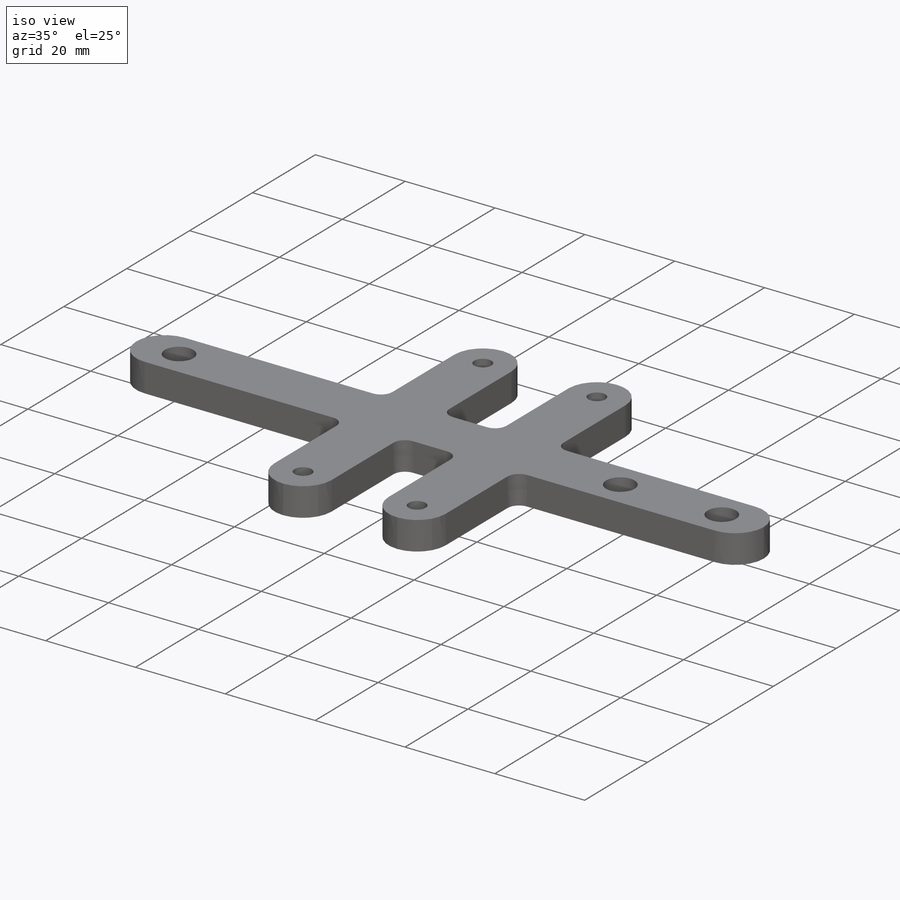
[diagram: iso view]
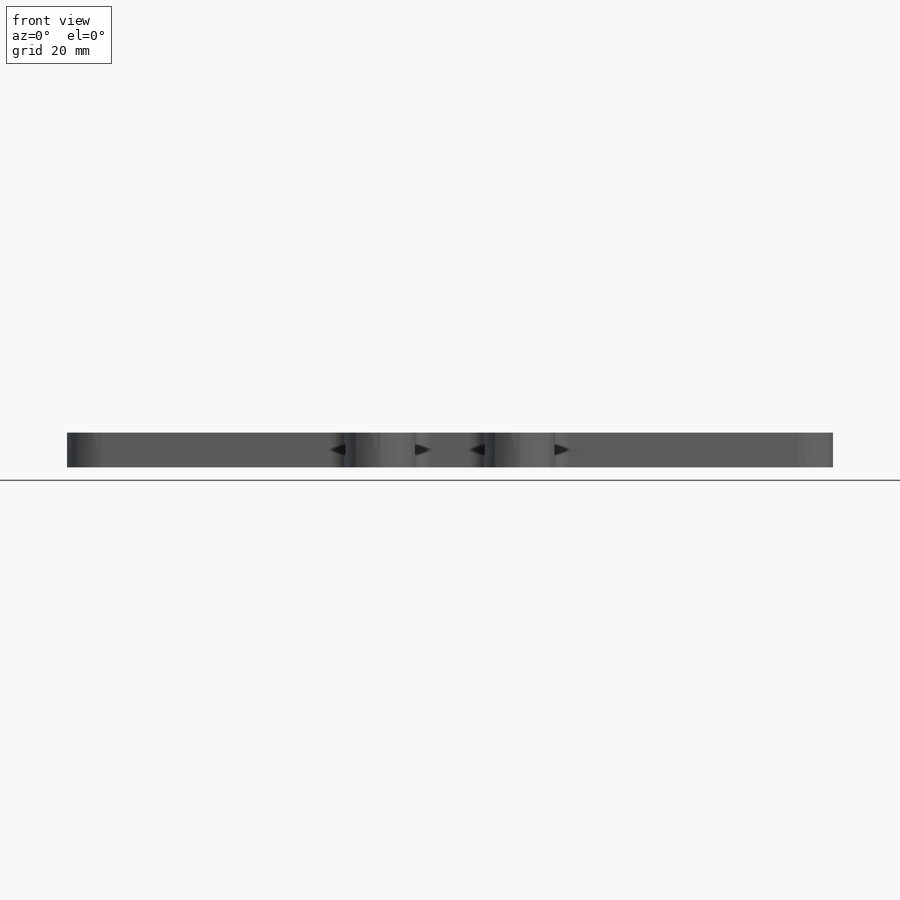
[diagram: front view]
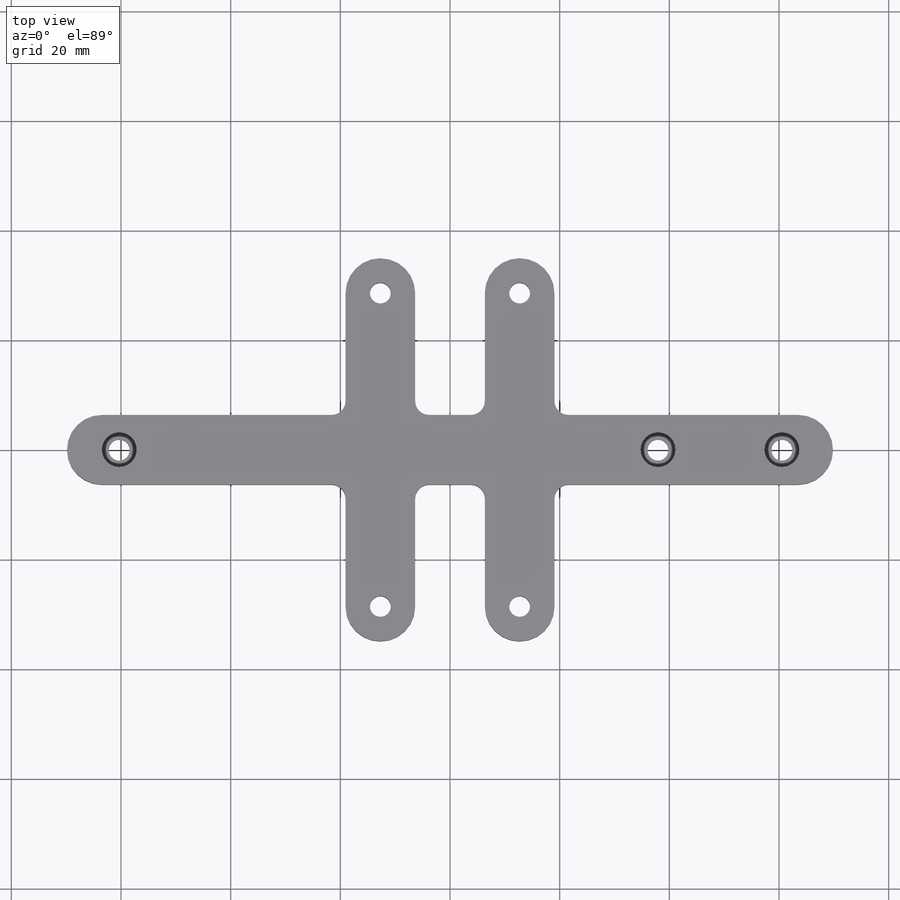
[diagram: top view]
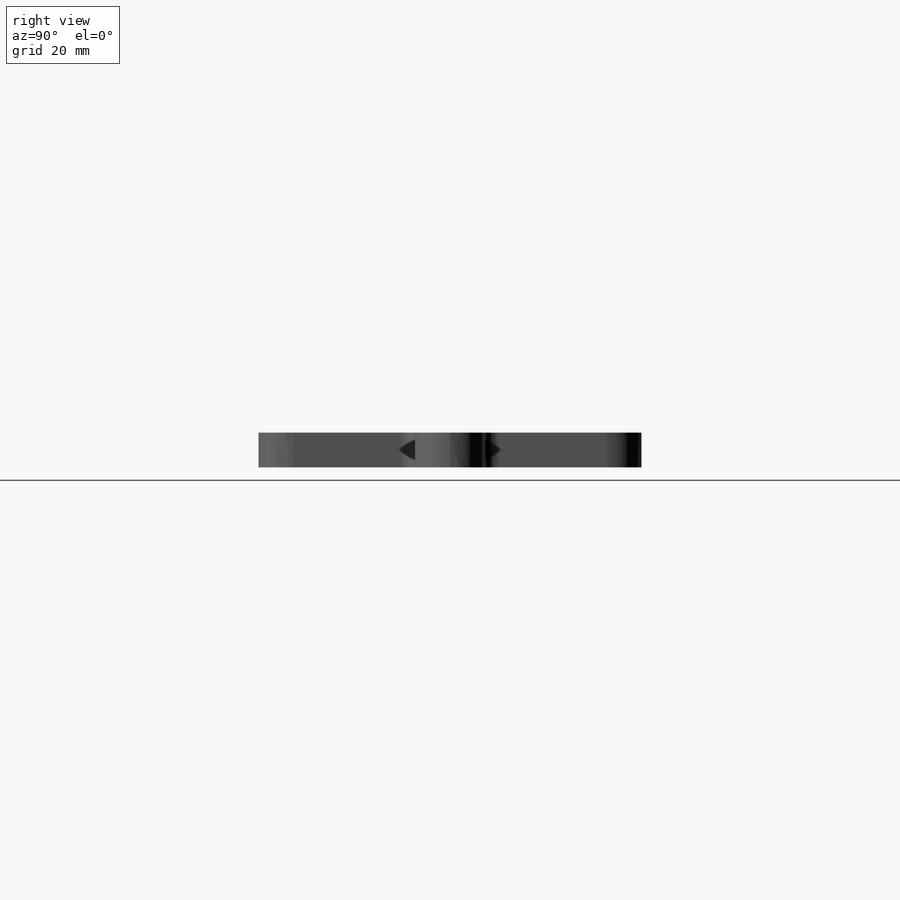
[diagram: right view]
SOLIDWORKS PART (.sldprt)
format: sldprt  version: not decoded by parser v0  size: 348,672 bytes
history: native  units: mm
features: sketch x10, fillet x3, hole x3, extrude x2, cut_extrude x2, material x1 (+11 scaffold rows collapsed)
feature tree (32):
  scaffold x11  (default folders/planes/origin — collapsed)
  material  "6061-T6 (SS)"
  sketch  "Sketch1"  dims[D1=139.7mm D2=12.7mm]
  extrude  "Boss-Extrude1"  Depth=6.35mm
  sketch  "Sketch2"  dims[c1.D1=6.35mm c1.D2=~6.731214mm c1.D3=6.35mm c1.D4=6.35mm c2.D2=60.325mm c2.D5=98.2472mm c2.D6=~22.60092mm]
  cut_extrude  "Cut-Extrude2"  Depth=4.7625mm
  sketch  "Sketch3"  dims[D1=6.35mm D2=6.35mm D3=12.7mm D4=12.7mm]
  cut_extrude  "Cut-Extrude3"  Depth=4.7625mm
  fillet  "Fillet1"  Radius=6.35mm
  hole  "#6 Clearance Hole1"  Diameter=3.7973mm Depth=25.4mm
  sketch  "Sketch5"
  sketch  "Sketch4"  dims[hole-wizard template sketch: 50 standard entries collapsed; hole parameters above]
  hole  "#6 Clearance Hole2"  Diameter=3.7973mm Depth=25.4mm
  sketch  "Sketch7"
  sketch  "Sketch6"  dims[hole-wizard template sketch: 50 standard entries collapsed; hole parameters above]
  sketch  "Sketch8"  dims[D1=12.7mm D2=12.7mm D3=69.85mm D4=69.85mm]
  extrude  "Boss-Extrude2"  Depth=6.35mm
  hole  "#6 Clearance Hole3"  Diameter=3.7973mm Depth=25.4mm
  sketch  "Sketch10"  dims[D1=6.35mm D2=6.35mm D3=6.35mm D4=6.35mm]
  sketch  "Sketch9"  dims[hole-wizard template sketch: 50 standard entries collapsed; hole parameters above]
  fillet  "Fillet2"  Radius=2.54mm
  fillet  "Fillet3"  Radius=6.35mm
decode coverage: 18 of 20 modeling features carry decoded parameters
note: ~ marks probable driven/reference dimensions
note: suppression state not decoded; provenance and decode notes live in map.json
